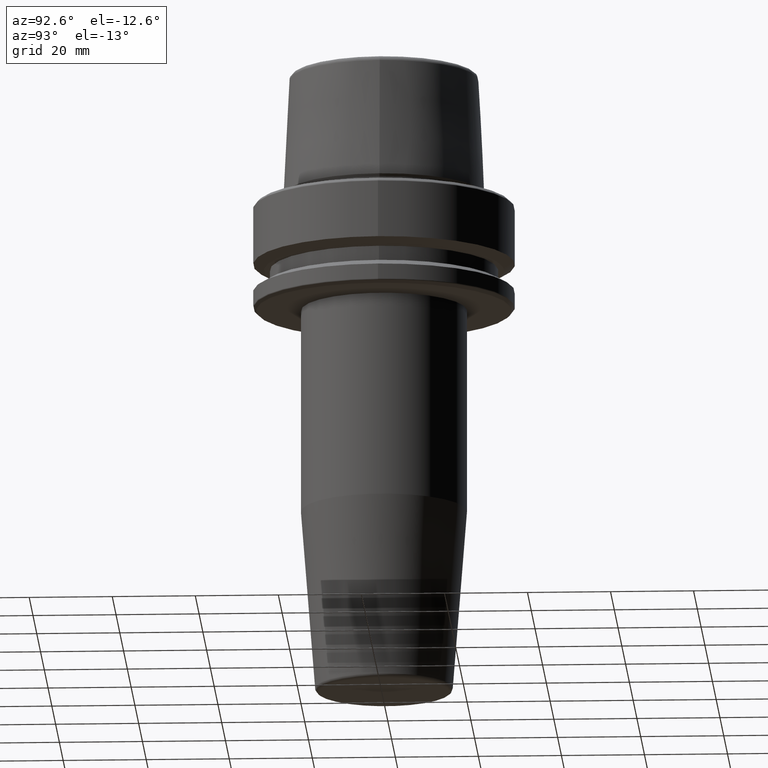
[diagram: clean part render]
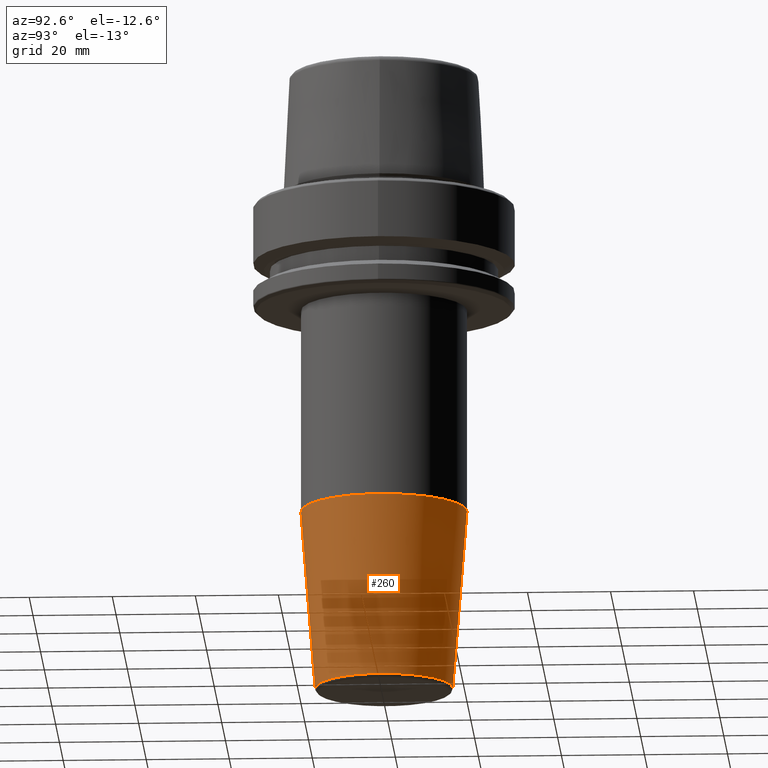
[diagram: same view with one face highlighted and labeled with its STEP entity id]
A machine part, auxiliary view. The second image highlights one B-rep face of the part: STEP entity #260.
In plain terms, the highlighted conical surface has half-angle 4.5 deg.
Its self-contained STEP definition (entity closure, byte-faithful):
#4 = DIRECTION ( 'NONE',  ( 0.0000000000000000000, -0.07845909572783725500, 0.9969173337331285200 ) ) ;
#12 = LINE ( 'NONE', #401, #759 ) ;
#66 = CARTESIAN_POINT ( 'NONE',  ( 2.029549195093063700E-015, -16.57252684207491500, -119.0784590957278100 ) ) ;
#152 = VECTOR ( 'NONE', #4, 1000.000000000000100 ) ;
#158 = EDGE_CURVE ( 'NONE', #285, #461, #810, .T. ) ;
#201 = AXIS2_PLACEMENT_3D ( 'NONE', #1146, #1041, #824 ) ;
#208 = ORIENTED_EDGE ( 'NONE', *, *, #158, .T. ) ;
#209 = EDGE_CURVE ( 'NONE', #1155, #285, #12, .T. ) ;
#231 = DIRECTION ( 'NONE',  ( 0.0000000000000000000, 1.000000000000000000, 0.0000000000000000000 ) ) ;
#260 = ADVANCED_FACE ( 'NONE', ( #1131 ), #372, .T. ) ;
#265 = CARTESIAN_POINT ( 'NONE',  ( 0.0000000000000000000, -19.99999999999998200, -75.52828342338428100 ) ) ;
#285 = VERTEX_POINT ( 'NONE', #525 ) ;
#347 = EDGE_LOOP ( 'NONE', ( #449, #545, #208, #816 ) ) ;
#367 = CARTESIAN_POINT ( 'NONE',  ( 0.0000000000000000000, -19.99999999999998200, -75.52828342338428100 ) ) ;
#372 = CONICAL_SURFACE ( 'NONE', #201, 19.99999999999998200, 0.07853981633973709800 ) ;
#400 = LINE ( 'NONE', #367, #152 ) ;
#401 = CARTESIAN_POINT ( 'NONE',  ( 2.449293598294704500E-015, 19.99999999999998200, -75.52828342338428100 ) ) ;
#449 = ORIENTED_EDGE ( 'NONE', *, *, #656, .F. ) ;
#461 = VERTEX_POINT ( 'NONE', #265 ) ;
#500 = CARTESIAN_POINT ( 'NONE',  ( 0.0000000000000000000, 2.425281638322359000E-015, -119.0784590957278100 ) ) ;
#525 = CARTESIAN_POINT ( 'NONE',  ( 2.449293598294704500E-015, 19.99999999999998200, -75.52828342338428100 ) ) ;
#545 = ORIENTED_EDGE ( 'NONE', *, *, #209, .T. ) ;
#551 = DIRECTION ( 'NONE',  ( 9.608468044709164400E-018, 0.07845909572783720000, 0.9969173337331285200 ) ) ;
#631 = AXIS2_PLACEMENT_3D ( 'NONE', #500, #994, #231 ) ;
#656 = EDGE_CURVE ( 'NONE', #1155, #1036, #830, .T. ) ;
#728 = DIRECTION ( 'NONE',  ( 0.0000000000000000000, 1.000000000000000000, 0.0000000000000000000 ) ) ;
#759 = VECTOR ( 'NONE', #551, 1000.000000000000100 ) ;
#810 = CIRCLE ( 'NONE', #999, 19.99999999999997900 ) ;
#816 = ORIENTED_EDGE ( 'NONE', *, *, #1167, .F. ) ;
#824 = DIRECTION ( 'NONE',  ( 0.0000000000000000000, -1.000000000000000000, 0.0000000000000000000 ) ) ;
#830 = CIRCLE ( 'NONE', #631, 16.57252684207491100 ) ;
#994 = DIRECTION ( 'NONE',  ( -0.0000000000000000000, 2.605631487547559100E-017, -1.000000000000000000 ) ) ;
#999 = AXIS2_PLACEMENT_3D ( 'NONE', #1161, #1114, #728 ) ;
#1036 = VERTEX_POINT ( 'NONE', #66 ) ;
#1041 = DIRECTION ( 'NONE',  ( 0.0000000000000000000, -2.605631487547559100E-017, 1.000000000000000000 ) ) ;
#1114 = DIRECTION ( 'NONE',  ( -0.0000000000000000000, 2.605631487547559100E-017, -1.000000000000000000 ) ) ;
#1131 = FACE_OUTER_BOUND ( 'NONE', #347, .T. ) ;
#1146 = CARTESIAN_POINT ( 'NONE',  ( 0.0000000000000000000, 1.290524548121498600E-015, -75.52828342338428100 ) ) ;
#1155 = VERTEX_POINT ( 'NONE', #1157 ) ;
#1157 = CARTESIAN_POINT ( 'NONE',  ( 0.0000000000000000000, 16.57252684207491800, -119.0784590957278100 ) ) ;
#1161 = CARTESIAN_POINT ( 'NONE',  ( 0.0000000000000000000, 1.290524548121498600E-015, -75.52828342338428100 ) ) ;
#1167 = EDGE_CURVE ( 'NONE', #1036, #461, #400, .T. ) ;